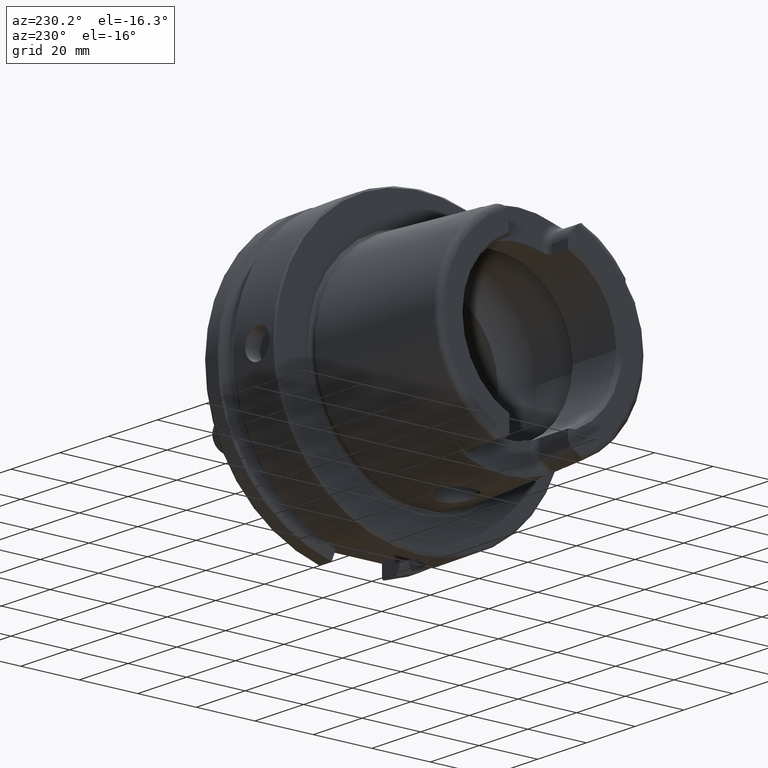
[diagram: clean part render]
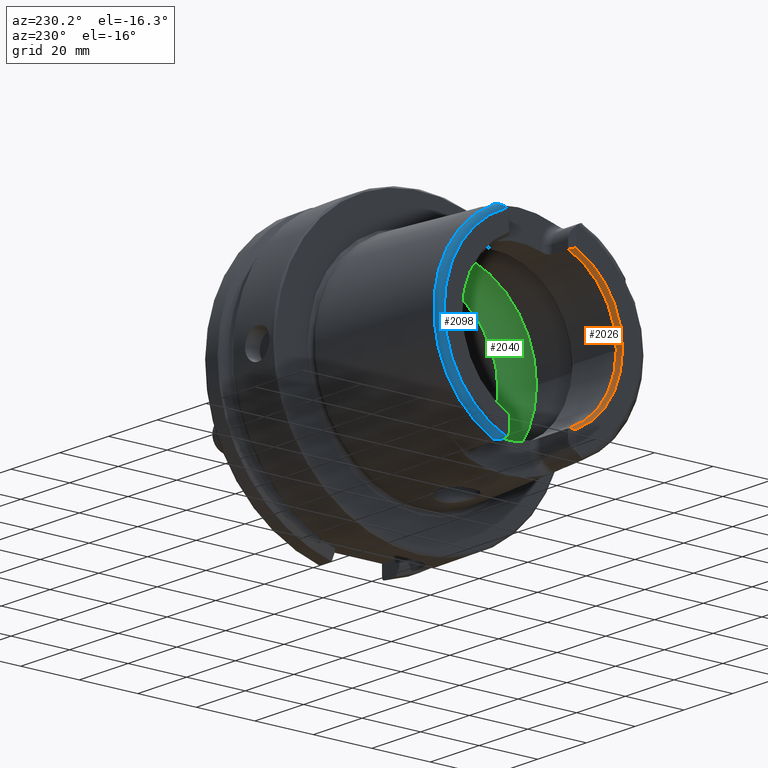
[diagram: same view with three faces highlighted in distinct colors, each labeled with its STEP entity id]
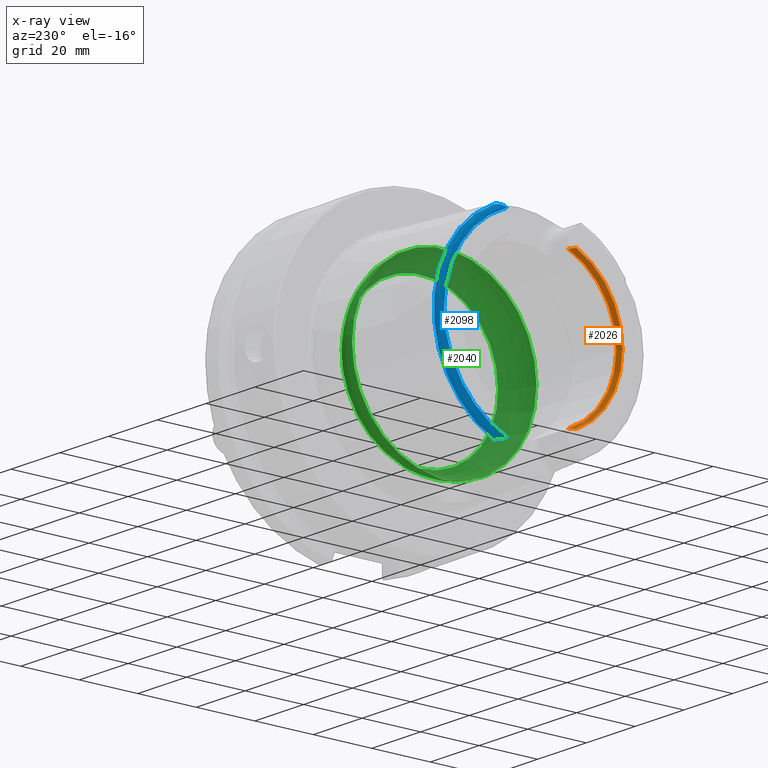
[diagram: x-ray of the same camera — body ghosted, the three highlighted faces saturated]
A machine part, auxiliary view with three faces highlighted in distinct colors.
The next image is the same camera in x-ray (body ghosted, the three faces saturated) — at least one of them is partly hidden behind the body in this view.
Their STEP definitions:

[orange] entity #2026 — the highlighted conical surface has half-angle 30 deg.
#34=ELLIPSE('',#2203,43.9552929417008,25.3776002121998);
#35=ELLIPSE('',#2206,43.9552929417008,25.3776002121998);
#401=CONICAL_SURFACE('',#2204,26.9330127018922,0.523598775598298);
#436=FACE_OUTER_BOUND('',#559,.T.);
#559=EDGE_LOOP('',(#1439,#1440,#1441,#1442,#1443));
#697=CIRCLE('',#2205,27.3660254037844);
#698=CIRCLE('',#2207,26.5);
#699=CIRCLE('',#2208,26.5);
#852=VERTEX_POINT('',#3274);
#853=VERTEX_POINT('',#3276);
#854=VERTEX_POINT('',#3280);
#855=VERTEX_POINT('',#3282);
#856=VERTEX_POINT('',#3284);
#1077=EDGE_CURVE('',#852,#853,#34,.T.);
#1079=EDGE_CURVE('',#852,#854,#697,.T.);
#1080=EDGE_CURVE('',#855,#854,#35,.T.);
#1081=EDGE_CURVE('',#855,#856,#698,.T.);
#1082=EDGE_CURVE('',#856,#853,#699,.T.);
#1439=ORIENTED_EDGE('',*,*,#1077,.F.);
#1440=ORIENTED_EDGE('',*,*,#1079,.T.);
#1441=ORIENTED_EDGE('',*,*,#1080,.F.);
#1442=ORIENTED_EDGE('',*,*,#1081,.T.);
#1443=ORIENTED_EDGE('',*,*,#1082,.T.);
#2026=ADVANCED_FACE('',(#436),#401,.F.);
#2203=AXIS2_PLACEMENT_3D('',#3277,#2548,#2549);
#2204=AXIS2_PLACEMENT_3D('',#3279,#2551,#2552);
#2205=AXIS2_PLACEMENT_3D('',#3281,#2553,#2554);
#2206=AXIS2_PLACEMENT_3D('',#3283,#2555,#2556);
#2207=AXIS2_PLACEMENT_3D('',#3285,#2557,#2558);
#2208=AXIS2_PLACEMENT_3D('',#3286,#2559,#2560);
#2548=DIRECTION('center_axis',(0.707106781186546,-0.707106781186549,0.));
#2549=DIRECTION('ref_axis',(0.707106781186549,0.707106781186546,0.));
#2551=DIRECTION('center_axis',(-1.,0.,0.));
#2552=DIRECTION('ref_axis',(0.,-1.,0.));
#2553=DIRECTION('center_axis',(-1.,0.,0.));
#2554=DIRECTION('ref_axis',(0.,-1.,0.));
#2555=DIRECTION('center_axis',(0.707106781186546,-0.707106781186549,0.));
#2556=DIRECTION('ref_axis',(0.707106781186549,0.707106781186546,0.));
#2557=DIRECTION('center_axis',(1.,0.,0.));
#2558=DIRECTION('ref_axis',(0.,-1.,0.));
#2559=DIRECTION('center_axis',(1.,0.,0.));
#2560=DIRECTION('ref_axis',(0.,-1.,0.));
#3274=CARTESIAN_POINT('',(-50.,-11.51,-24.8277918148307));
#3276=CARTESIAN_POINT('',(-48.5,-10.01,-24.5367051577835));
#3277=CARTESIAN_POINT('Origin',(-56.4346732002877,-17.9446732002876,0.));
#3279=CARTESIAN_POINT('Origin',(-49.25,0.,0.));
#3280=CARTESIAN_POINT('',(-50.,-11.51,24.8277918148307));
#3281=CARTESIAN_POINT('Origin',(-50.,0.,0.));
#3282=CARTESIAN_POINT('',(-48.5,-10.01,24.5367051577835));
#3283=CARTESIAN_POINT('Origin',(-56.4346732002877,-17.9446732002876,0.));
#3284=CARTESIAN_POINT('',(-48.5,-26.5,3.24531401774049E-15));
#3285=CARTESIAN_POINT('Origin',(-48.5,0.,0.));
#3286=CARTESIAN_POINT('Origin',(-48.5,0.,0.));

[blue] entity #2098 — the highlighted toroidal blend (fillet) surface has major radius 33.6002 mm and minor (blend) radius 2 mm.
#43=B_SPLINE_CURVE_WITH_KNOTS('',3,(#3234,#3235,#3236,#3237,#3238,#3239,
#3240,#3241,#3242,#3243,#3244,#3245),.UNSPECIFIED.,.F.,.F.,(4,2,2,2,2,4),
(-0.744485085130335,-0.701284148098614,-0.656581713087918,-0.531183195108729,
-0.406814905045398,-0.320767863003946),.UNSPECIFIED.);
#48=B_SPLINE_CURVE_WITH_KNOTS('',3,(#3353,#3354,#3355,#3356,#3357,#3358,
#3359,#3360,#3361,#3362,#3363,#3364),.UNSPECIFIED.,.F.,.F.,(4,2,2,2,2,4),
(-0.33049294128038,-0.267730672592795,-0.15978363726818,-0.0785649842435549,
-0.0319753598823885,-6.79221864813266E-5),.UNSPECIFIED.);
#508=FACE_OUTER_BOUND('',#636,.T.);
#636=EDGE_LOOP('',(#1852,#1853,#1854,#1855));
#709=CIRCLE('',#2229,35.5976786130245);
#770=CIRCLE('',#2352,33.6001839277785);
#845=VERTEX_POINT('',#3231);
#846=VERTEX_POINT('',#3233);
#871=VERTEX_POINT('',#3343);
#872=VERTEX_POINT('',#3352);
#1070=EDGE_CURVE('',#846,#845,#43,.T.);
#1102=EDGE_CURVE('',#872,#871,#48,.T.);
#1121=EDGE_CURVE('',#846,#871,#709,.T.);
#1293=EDGE_CURVE('',#845,#872,#770,.T.);
#1852=ORIENTED_EDGE('',*,*,#1102,.T.);
#1853=ORIENTED_EDGE('',*,*,#1121,.F.);
#1854=ORIENTED_EDGE('',*,*,#1070,.T.);
#1855=ORIENTED_EDGE('',*,*,#1293,.T.);
#1997=TOROIDAL_SURFACE('',#2351,33.6001839277785,2.);
#2098=ADVANCED_FACE('',(#508),#1997,.T.);
#2229=AXIS2_PLACEMENT_3D('',#3621,#2613,#2614);
#2351=AXIS2_PLACEMENT_3D('',#4552,#2916,#2917);
#2352=AXIS2_PLACEMENT_3D('',#4553,#2918,#2919);
#2613=DIRECTION('center_axis',(1.,0.,0.));
#2614=DIRECTION('ref_axis',(0.,0.,-1.));
#2916=DIRECTION('center_axis',(1.,0.,0.));
#2917=DIRECTION('ref_axis',(0.,0.,-1.));
#2918=DIRECTION('center_axis',(1.,0.,0.));
#2919=DIRECTION('ref_axis',(0.,0.,-1.));
#3231=CARTESIAN_POINT('',(-50.,12.0743049948301,-31.355757348091));
#3233=CARTESIAN_POINT('',(-48.1000748840304,15.0787152148571,-32.2463497175327));
#3234=CARTESIAN_POINT('Ctrl Pts',(-48.1000748840304,15.0787152148571,-32.2463497175327));
#3235=CARTESIAN_POINT('Ctrl Pts',(-48.2105289331959,15.0644723890649,-32.2469009162952));
#3236=CARTESIAN_POINT('Ctrl Pts',(-48.3152849211513,15.0274043790922,-32.2483365520296));
#3237=CARTESIAN_POINT('Ctrl Pts',(-48.5158350355592,14.9227249886344,-32.2501807122049));
#3238=CARTESIAN_POINT('Ctrl Pts',(-48.6114759122293,14.853948633775,-32.2504380099703));
#3239=CARTESIAN_POINT('Ctrl Pts',(-48.9444340259589,14.5699075364914,-32.2439932048825));
#3240=CARTESIAN_POINT('Ctrl Pts',(-49.1873237794489,14.2618237213855,-32.2229124522755));
#3241=CARTESIAN_POINT('Ctrl Pts',(-49.6096022065355,13.5557805634606,-32.0777680620402));
#3242=CARTESIAN_POINT('Ctrl Pts',(-49.7790094341757,13.1775605707035,-31.9575317726829));
#3243=CARTESIAN_POINT('Ctrl Pts',(-49.9573633441756,12.558596693048,-31.6661869684752));
#3244=CARTESIAN_POINT('Ctrl Pts',(-50.,12.3094122367882,-31.5218463066117));
#3245=CARTESIAN_POINT('Ctrl Pts',(-50.,12.0743049948301,-31.355757348091));
#3343=CARTESIAN_POINT('',(-48.1000748840304,15.0787152148571,32.2463497175327));
#3352=CARTESIAN_POINT('',(-50.,12.0743049948301,31.355757348091));
#3353=CARTESIAN_POINT('Ctrl Pts',(-50.,12.0743049948301,31.355757348091));
#3354=CARTESIAN_POINT('Ctrl Pts',(-50.,12.2864160042027,31.5056008677719));
#3355=CARTESIAN_POINT('Ctrl Pts',(-49.965181241452,12.5182840828266,31.6438016135975));
#3356=CARTESIAN_POINT('Ctrl Pts',(-49.780095292634,13.1934814711235,31.9701190766011));
#3357=CARTESIAN_POINT('Ctrl Pts',(-49.5793805506892,13.6220310736955,32.097613465566));
#3358=CARTESIAN_POINT('Ctrl Pts',(-49.170216000735,14.274989330902,32.2194840260055));
#3359=CARTESIAN_POINT('Ctrl Pts',(-48.9762638716764,14.5215824129494,32.2396097025416));
#3360=CARTESIAN_POINT('Ctrl Pts',(-48.6666306582889,14.8133702905837,32.2505591140316));
#3361=CARTESIAN_POINT('Ctrl Pts',(-48.5389792055844,14.9127554064334,32.2504492219699));
#3362=CARTESIAN_POINT('Ctrl Pts',(-48.3058528414878,15.0307034754738,32.2482068363322));
#3363=CARTESIAN_POINT('Ctrl Pts',(-48.2055479344945,15.0651146787529,32.2468760596209));
#3364=CARTESIAN_POINT('Ctrl Pts',(-48.1000748840303,15.0787152148571,32.2463497175327));
#3621=CARTESIAN_POINT('Origin',(-48.1000748840304,0.,0.));
#4552=CARTESIAN_POINT('Origin',(-48.,0.,0.));
#4553=CARTESIAN_POINT('Origin',(-50.,0.,0.));

[green] entity #2040 — the highlighted toroidal blend (fillet) surface has major radius 19.5 mm and minor (blend) radius 12 mm.
#60=B_SPLINE_CURVE_WITH_KNOTS('',3,(#3687,#3688,#3689,#3690,#3691,#3692,
#3693,#3694,#3695,#3696),.UNSPECIFIED.,.F.,.F.,(4,2,2,2,4),(-0.606113644645353,
-0.532141714710631,-0.407956541554012,-0.344441109025195,-0.303157612487306),
 .UNSPECIFIED.);
#62=B_SPLINE_CURVE_WITH_KNOTS('',3,(#3729,#3730,#3731,#3732,#3733,#3734,
#3735,#3736,#3737,#3738),.UNSPECIFIED.,.F.,.F.,(4,2,2,2,4),(-0.303157612487306,
-0.297161587155601,-0.247817233363509,-0.174446982686599,0.),
 .UNSPECIFIED.);
#65=B_SPLINE_CURVE_WITH_KNOTS('',3,(#3879,#3880,#3881,#3882,#3883,#3884,
#3885,#3886,#3887,#3888),.UNSPECIFIED.,.F.,.F.,(4,2,2,2,4),(-0.606113644645388,
-0.532141714710621,-0.407956541553997,-0.344441109025146,-0.303157612487227),
 .UNSPECIFIED.);
#67=B_SPLINE_CURVE_WITH_KNOTS('',3,(#3921,#3922,#3923,#3924,#3925,#3926,
#3927,#3928,#3929,#3930),.UNSPECIFIED.,.F.,.F.,(4,2,2,2,4),(-0.303157612487227,
-0.297161587155532,-0.247817233363497,-0.174446982686607,0.),
 .UNSPECIFIED.);
#450=FACE_OUTER_BOUND('',#575,.T.);
#575=EDGE_LOOP('',(#1533,#1534,#1535,#1536,#1537,#1538,#1539,#1540,#1541,
#1542,#1543));
#712=CIRCLE('',#2235,31.5);
#715=CIRCLE('',#2238,31.5);
#716=CIRCLE('',#2239,31.5);
#717=CIRCLE('',#2241,26.5);
#718=CIRCLE('',#2242,26.5);
#719=CIRCLE('',#2243,12.);
#890=VERTEX_POINT('',#3684);
#891=VERTEX_POINT('',#3686);
#892=VERTEX_POINT('',#3697);
#895=VERTEX_POINT('',#3877);
#896=VERTEX_POINT('',#3878);
#897=VERTEX_POINT('',#3889);
#898=VERTEX_POINT('',#3933);
#901=VERTEX_POINT('',#3943);
#902=VERTEX_POINT('',#3944);
#1128=EDGE_CURVE('',#891,#890,#60,.T.);
#1130=EDGE_CURVE('',#890,#892,#62,.T.);
#1134=EDGE_CURVE('',#895,#896,#65,.T.);
#1136=EDGE_CURVE('',#896,#897,#67,.T.);
#1138=EDGE_CURVE('',#898,#895,#712,.T.);
#1142=EDGE_CURVE('',#892,#898,#715,.T.);
#1143=EDGE_CURVE('',#897,#891,#716,.T.);
#1144=EDGE_CURVE('',#901,#902,#717,.T.);
#1145=EDGE_CURVE('',#902,#901,#718,.T.);
#1146=EDGE_CURVE('',#902,#890,#719,.T.);
#1533=ORIENTED_EDGE('',*,*,#1144,.F.);
#1534=ORIENTED_EDGE('',*,*,#1145,.F.);
#1535=ORIENTED_EDGE('',*,*,#1146,.T.);
#1536=ORIENTED_EDGE('',*,*,#1130,.T.);
#1537=ORIENTED_EDGE('',*,*,#1142,.T.);
#1538=ORIENTED_EDGE('',*,*,#1138,.T.);
#1539=ORIENTED_EDGE('',*,*,#1134,.T.);
#1540=ORIENTED_EDGE('',*,*,#1136,.T.);
#1541=ORIENTED_EDGE('',*,*,#1143,.T.);
#1542=ORIENTED_EDGE('',*,*,#1128,.T.);
#1543=ORIENTED_EDGE('',*,*,#1146,.F.);
#1981=TOROIDAL_SURFACE('',#2240,19.5,12.);
#2040=ADVANCED_FACE('',(#450),#1981,.F.);
#2235=AXIS2_PLACEMENT_3D('',#3934,#2628,#2629);
#2238=AXIS2_PLACEMENT_3D('',#3940,#2635,#2636);
#2239=AXIS2_PLACEMENT_3D('',#3941,#2637,#2638);
#2240=AXIS2_PLACEMENT_3D('',#3942,#2639,#2640);
#2241=AXIS2_PLACEMENT_3D('',#3945,#2641,#2642);
#2242=AXIS2_PLACEMENT_3D('',#3946,#2643,#2644);
#2243=AXIS2_PLACEMENT_3D('',#3947,#2645,#2646);
#2628=DIRECTION('center_axis',(-1.,0.,0.));
#2629=DIRECTION('ref_axis',(0.,0.,1.));
#2635=DIRECTION('center_axis',(-1.,0.,0.));
#2636=DIRECTION('ref_axis',(0.,0.,1.));
#2637=DIRECTION('center_axis',(-1.,0.,0.));
#2638=DIRECTION('ref_axis',(0.,0.,1.));
#2639=DIRECTION('center_axis',(-1.,0.,0.));
#2640=DIRECTION('ref_axis',(0.,0.,1.));
#2641=DIRECTION('center_axis',(-1.,0.,0.));
#2642=DIRECTION('ref_axis',(0.,0.,1.));
#2643=DIRECTION('center_axis',(-1.,0.,0.));
#2644=DIRECTION('ref_axis',(0.,0.,1.));
#2645=DIRECTION('center_axis',(0.,1.,-1.22464679914735E-16));
#2646=DIRECTION('ref_axis',(0.,-1.22464679914735E-16,-1.));
#3684=CARTESIAN_POINT('',(-9.,8.53116613017712E-16,-31.4767398822284));
#3686=CARTESIAN_POINT('',(-9.74679434480896,2.89893607109041,-31.3663222207471));
#3687=CARTESIAN_POINT('Ctrl Pts',(-9.74679434480898,2.89893607109041,-31.3663222207471));
#3688=CARTESIAN_POINT('Ctrl Pts',(-9.62803941549252,2.68373847757038,-31.3862111979079));
#3689=CARTESIAN_POINT('Ctrl Pts',(-9.52250794022164,2.46123932380009,-31.4027818190648));
#3690=CARTESIAN_POINT('Ctrl Pts',(-9.27707880675082,1.84905941644996,-31.4398086116956));
#3691=CARTESIAN_POINT('Ctrl Pts',(-9.16318715371328,1.45014848778478,-31.4552463037839));
#3692=CARTESIAN_POINT('Ctrl Pts',(-9.05448554629564,0.83406948853474,-31.4697090180031));
#3693=CARTESIAN_POINT('Ctrl Pts',(-9.02875508102837,0.623753972628784,-31.4730355369691));
#3694=CARTESIAN_POINT('Ctrl Pts',(-9.00473516300901,0.275210595137741,-31.4761342948647));
#3695=CARTESIAN_POINT('Ctrl Pts',(-9.,0.13762179988616,-31.4767398822284));
#3696=CARTESIAN_POINT('Ctrl Pts',(-9.,9.71445146547012E-16,-31.4767398822284));
#3697=CARTESIAN_POINT('',(-9.74679434480896,-2.89893607109041,-31.3663222207471));
#3729=CARTESIAN_POINT('Ctrl Pts',(-9.,9.83483832277069E-16,-31.4767398822284));
#3730=CARTESIAN_POINT('Ctrl Pts',(-9.,-0.0199882245331354,-31.4767398822284));
#3731=CARTESIAN_POINT('Ctrl Pts',(-9.00009988237686,-0.0399771452902417,
-31.4767270717783));
#3732=CARTESIAN_POINT('Ctrl Pts',(-9.00194380057016,-0.224464346212316,
-31.4764905359115));
#3733=CARTESIAN_POINT('Ctrl Pts',(-9.01035297969853,-0.388827878343727,
-31.4754151841588));
#3734=CARTESIAN_POINT('Ctrl Pts',(-9.0480310904853,-0.796171644009328,-31.4705320701686));
#3735=CARTESIAN_POINT('Ctrl Pts',(-9.08543037238412,-1.03809779370842,-31.4656619259797));
#3736=CARTESIAN_POINT('Ctrl Pts',(-9.26119500081336,-1.84501079512327,-31.441850680052));
#3737=CARTESIAN_POINT('Ctrl Pts',(-9.4667592962906,-2.39148034786879,-31.4132222586341));
#3738=CARTESIAN_POINT('Ctrl Pts',(-9.74679434480898,-2.89893607109041,-31.3663222207471));
#3877=CARTESIAN_POINT('',(-9.74679434480896,-2.89893607109042,31.3663222207471));
#3878=CARTESIAN_POINT('',(-8.99999999999999,7.8372767397864E-16,31.4767398822284));
#3879=CARTESIAN_POINT('Ctrl Pts',(-9.74679434480898,-2.89893607109042,31.3663222207471));
#3880=CARTESIAN_POINT('Ctrl Pts',(-9.62803941549257,-2.6837384775705,31.3862111979079));
#3881=CARTESIAN_POINT('Ctrl Pts',(-9.52250794022172,-2.46123932380032,31.4027818190648));
#3882=CARTESIAN_POINT('Ctrl Pts',(-9.27707880675083,-1.84905941645004,31.4398086116956));
#3883=CARTESIAN_POINT('Ctrl Pts',(-9.16318715371328,-1.45014848778485,31.4552463037839));
#3884=CARTESIAN_POINT('Ctrl Pts',(-9.05448554629561,-0.834069488534672,
31.4697090180031));
#3885=CARTESIAN_POINT('Ctrl Pts',(-9.02875508102836,-0.623753972628598,
31.4730355369691));
#3886=CARTESIAN_POINT('Ctrl Pts',(-9.00473516300902,-0.275210595137865,
31.4761342948647));
#3887=CARTESIAN_POINT('Ctrl Pts',(-8.99999999999999,-0.137621799886392,
31.4767398822284));
#3888=CARTESIAN_POINT('Ctrl Pts',(-8.99999999999999,9.0205620750794E-16,
31.4767398822284));
#3889=CARTESIAN_POINT('',(-9.74679434480896,2.89893607109042,31.3663222207471));
#3921=CARTESIAN_POINT('Ctrl Pts',(-8.99999999999999,8.7920239009422E-16,
31.4767398822284));
#3922=CARTESIAN_POINT('Ctrl Pts',(-8.99999999999999,0.0199882245331231,
31.4767398822284));
#3923=CARTESIAN_POINT('Ctrl Pts',(-9.00009988237684,0.0399771452902225,
31.4767270717783));
#3924=CARTESIAN_POINT('Ctrl Pts',(-9.00194380057014,0.224464346212396,31.4764905359115));
#3925=CARTESIAN_POINT('Ctrl Pts',(-9.01035297969852,0.388827878343765,31.4754151841588));
#3926=CARTESIAN_POINT('Ctrl Pts',(-9.0480310904853,0.79617164400948,31.4705320701686));
#3927=CARTESIAN_POINT('Ctrl Pts',(-9.08543037238414,1.03809779370849,31.4656619259797));
#3928=CARTESIAN_POINT('Ctrl Pts',(-9.26119500081334,1.84501079512323,31.441850680052));
#3929=CARTESIAN_POINT('Ctrl Pts',(-9.46675929629059,2.39148034786878,31.4132222586341));
#3930=CARTESIAN_POINT('Ctrl Pts',(-9.74679434480898,2.89893607109043,31.3663222207471));
#3933=CARTESIAN_POINT('',(-9.74679434480896,-31.5,3.85763741731416E-15));
#3934=CARTESIAN_POINT('Origin',(-9.74679434480896,0.,0.));
#3940=CARTESIAN_POINT('Origin',(-9.74679434480896,0.,0.));
#3941=CARTESIAN_POINT('Origin',(-9.74679434480896,0.,0.));
#3942=CARTESIAN_POINT('Origin',(-9.74679434480896,0.,0.));
#3943=CARTESIAN_POINT('',(0.,-26.5,3.24531401774049E-15));
#3944=CARTESIAN_POINT('',(0.,-3.24531401774049E-15,-26.5));
#3945=CARTESIAN_POINT('Origin',(0.,0.,0.));
#3946=CARTESIAN_POINT('Origin',(0.,0.,0.));
#3947=CARTESIAN_POINT('Origin',(-9.74679434480896,-2.38806125833734E-15,
-19.5));